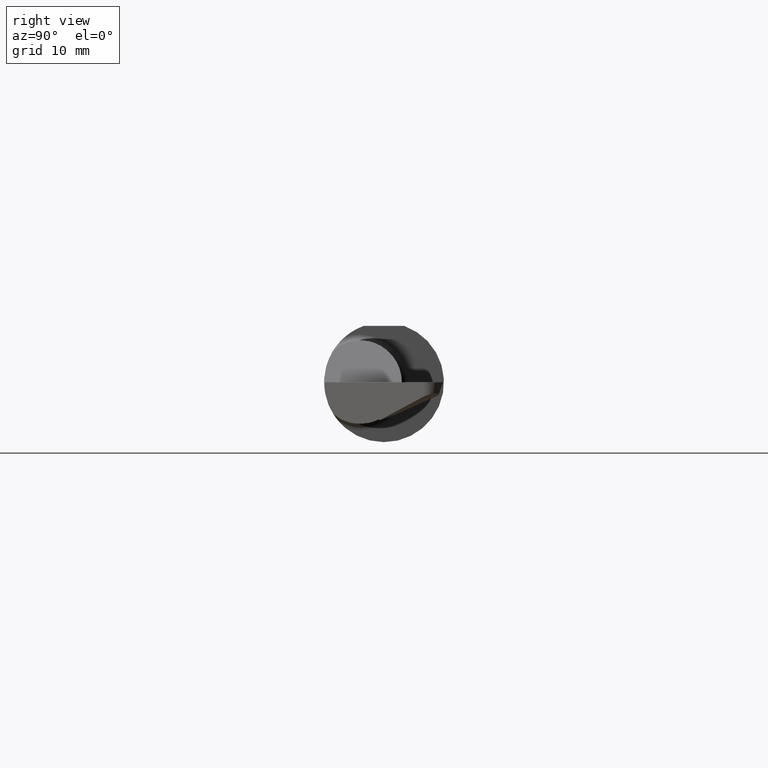
[diagram: clean part render]
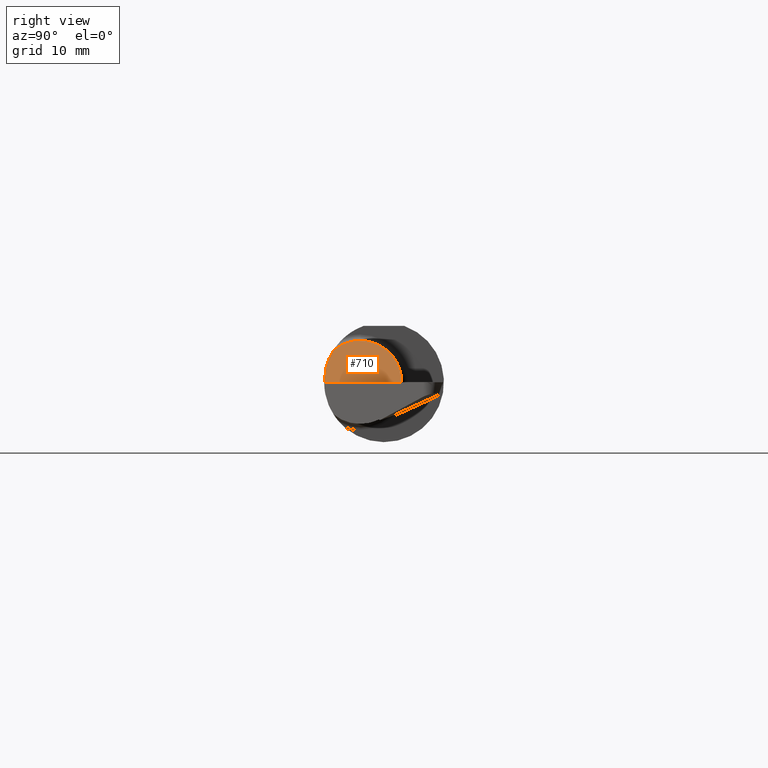
[diagram: same view with one face highlighted and labeled with its STEP entity id]
A machine part, right view. The second image highlights one B-rep face of the part: STEP entity #710.
In plain terms, the highlighted planar face has unit normal (-0.7071, 0, -0.7071).
Its self-contained STEP definition (entity closure, byte-faithful):
#11 = FACE_OUTER_BOUND ( 'NONE', #550, .T. ) ;
#41 = ORIENTED_EDGE ( 'NONE', *, *, #828, .F. ) ;
#69 = CARTESIAN_POINT ( 'NONE',  ( 2.480000000000000426, 0.07415000000000021574, -5.549066237130534971E-17 ) ) ;
#89 = EDGE_CURVE ( 'NONE', #795, #475, #537, .T. ) ;
#101 = DIRECTION ( 'NONE',  ( -0.000000000000000000, 1.000000000000000000, -0.000000000000000000 ) ) ;
#105 = CARTESIAN_POINT ( 'NONE',  ( 2.346054777255357937, -0.2109115923885825639, 0.1339452227446444599 ) ) ;
#112 = EDGE_CURVE ( 'NONE', #795, #535, #451, .T. ) ;
#123 = CARTESIAN_POINT ( 'NONE',  ( 2.306000000000002270, 0.002076840147081597272, 0.1740000000000002378 ) ) ;
#163 = CARTESIAN_POINT ( 'NONE',  ( 2.319901235500921199, -0.1793692571805419744, 0.1600987644990815861 ) ) ;
#176 = VERTEX_POINT ( 'NONE', #798 ) ;
#236 = CARTESIAN_POINT ( 'NONE',  ( 2.306000000000002714, -0.1408247075240017798, 0.1740000000000002378 ) ) ;
#276 = EDGE_CURVE ( 'NONE', #176, #475, #321, .T. ) ;
#299 = CARTESIAN_POINT ( 'NONE',  ( 2.306000000000002714, -0.09985000000000000819, 0.1740000000000002378 ) ) ;
#310 = CARTESIAN_POINT ( 'NONE',  ( 2.378073159852920337, 0.07415000000000025737, 0.1019268401470815599 ) ) ;
#321 =( BOUNDED_CURVE ( )  B_SPLINE_CURVE ( 3, ( #299, #123, #310, #617 ),
 .UNSPECIFIED., .F., .F. ) 
 B_SPLINE_CURVE_WITH_KNOTS ( ( 4, 4 ),
 ( 0.000000000000000000, 1.570796326794896780 ),
 .UNSPECIFIED. ) 
 CURVE ( )  GEOMETRIC_REPRESENTATION_ITEM ( )  RATIONAL_B_SPLINE_CURVE ( ( 1.000000000000000000, 0.8047378541243649375, 0.8047378541243649375, 1.000000000000000000 ) ) 
 REPRESENTATION_ITEM ( '' )  );
#329 = CARTESIAN_POINT ( 'NONE',  ( 2.480000000000000426, -0.2498499999999999888, -5.549066237130534971E-17 ) ) ;
#338 = DIRECTION ( 'NONE',  ( -0.7071067811865422437, 0.000000000000000000, 0.7071067811865526798 ) ) ;
#344 = CARTESIAN_POINT ( 'NONE',  ( 2.386373634735572402, -0.2365171946451294638, 0.09362636526442918994 ) ) ;
#389 = DIRECTION ( 'NONE',  ( -0.7071067811865527908, 0.000000000000000000, -0.7071067811865423547 ) ) ;
#410 = CARTESIAN_POINT ( 'NONE',  ( 2.432237492366603249, -0.2498499999999999888, 0.04776250763339776745 ) ) ;
#451 =( BOUNDED_CURVE ( )  B_SPLINE_CURVE ( 3, ( #479, #410, #344, #105 ),
 .UNSPECIFIED., .F., .T. ) 
 B_SPLINE_CURVE_WITH_KNOTS ( ( 4, 4 ),
 ( 4.712388980384689674, 5.278202291926595180 ),
 .UNSPECIFIED. ) 
 CURVE ( )  GEOMETRIC_REPRESENTATION_ITEM ( )  RATIONAL_B_SPLINE_CURVE ( ( 1.000000000000000000, 0.9734987392630287673, 0.9734987392630287673, 1.000000000000000000 ) ) 
 REPRESENTATION_ITEM ( '' )  );
#465 = AXIS2_PLACEMENT_3D ( 'NONE', #510, #389, #338 ) ;
#475 = VERTEX_POINT ( 'NONE', #69 ) ;
#476 = CARTESIAN_POINT ( 'NONE',  ( 2.346054777255357937, -0.2109115923885825639, 0.1339452227446444599 ) ) ;
#479 = CARTESIAN_POINT ( 'NONE',  ( 2.480000000000000426, -0.2498499999999999888, -5.549066237130534971E-17 ) ) ;
#510 = CARTESIAN_POINT ( 'NONE',  ( 2.480000000000000426, -0.2498499999999999888, -5.549066237130534971E-17 ) ) ;
#531 = CARTESIAN_POINT ( 'NONE',  ( 2.480000000000000426, 0.2500000000000000000, -5.549066237130534971E-17 ) ) ;
#535 = VERTEX_POINT ( 'NONE', #656 ) ;
#537 = LINE ( 'NONE', #531, #791 ) ;
#550 = EDGE_LOOP ( 'NONE', ( #41, #576, #663, #586 ) ) ;
#570 =( BOUNDED_CURVE ( )  B_SPLINE_CURVE ( 3, ( #476, #163, #236, #804 ),
 .UNSPECIFIED., .F., .F. ) 
 B_SPLINE_CURVE_WITH_KNOTS ( ( 4, 4 ),
 ( 5.590916938044861340, 6.283185307179586232 ),
 .UNSPECIFIED. ) 
 CURVE ( )  GEOMETRIC_REPRESENTATION_ITEM ( )  RATIONAL_B_SPLINE_CURVE ( ( 1.000000000000000000, 0.9604608466326350902, 0.9604608466326350902, 1.000000000000000000 ) ) 
 REPRESENTATION_ITEM ( '' )  );
#576 = ORIENTED_EDGE ( 'NONE', *, *, #112, .F. ) ;
#586 = ORIENTED_EDGE ( 'NONE', *, *, #276, .F. ) ;
#587 = PLANE ( 'NONE',  #465 ) ;
#617 = CARTESIAN_POINT ( 'NONE',  ( 2.480000000000000426, 0.07415000000000021574, -5.549066237130534971E-17 ) ) ;
#656 = CARTESIAN_POINT ( 'NONE',  ( 2.346054777255357937, -0.2109115923885825639, 0.1339452227446444599 ) ) ;
#663 = ORIENTED_EDGE ( 'NONE', *, *, #89, .T. ) ;
#710 = ADVANCED_FACE ( 'NONE', ( #11 ), #587, .F. ) ;
#791 = VECTOR ( 'NONE', #101, 39.37007874015748143 ) ;
#795 = VERTEX_POINT ( 'NONE', #329 ) ;
#798 = CARTESIAN_POINT ( 'NONE',  ( 2.306000000000002714, -0.09985000000000000819, 0.1740000000000002378 ) ) ;
#804 = CARTESIAN_POINT ( 'NONE',  ( 2.306000000000002714, -0.09985000000000000819, 0.1740000000000002378 ) ) ;
#828 = EDGE_CURVE ( 'NONE', #535, #176, #570, .T. ) ;